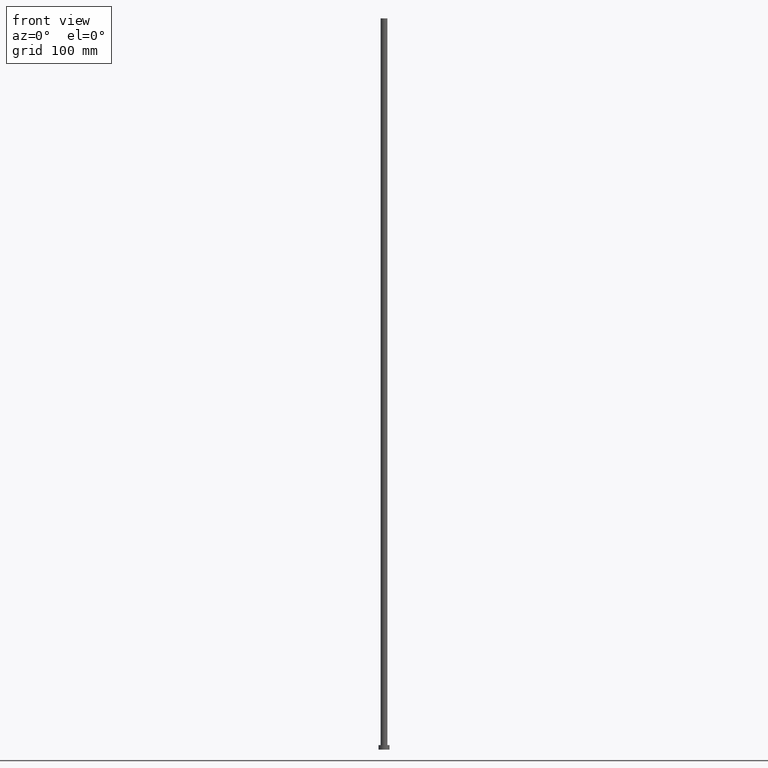
[diagram: clean part render]
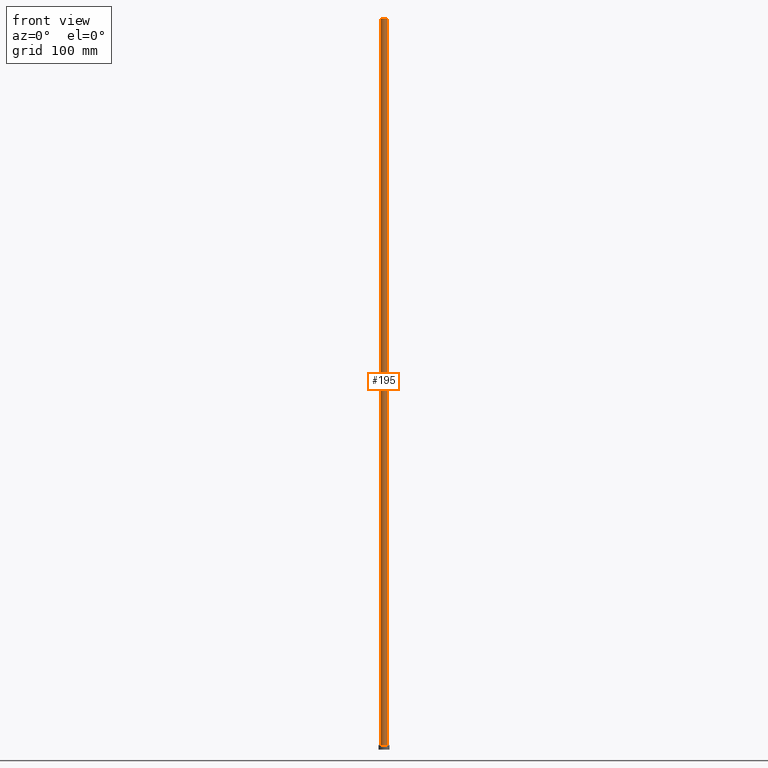
[diagram: same view with one face highlighted and labeled with its STEP entity id]
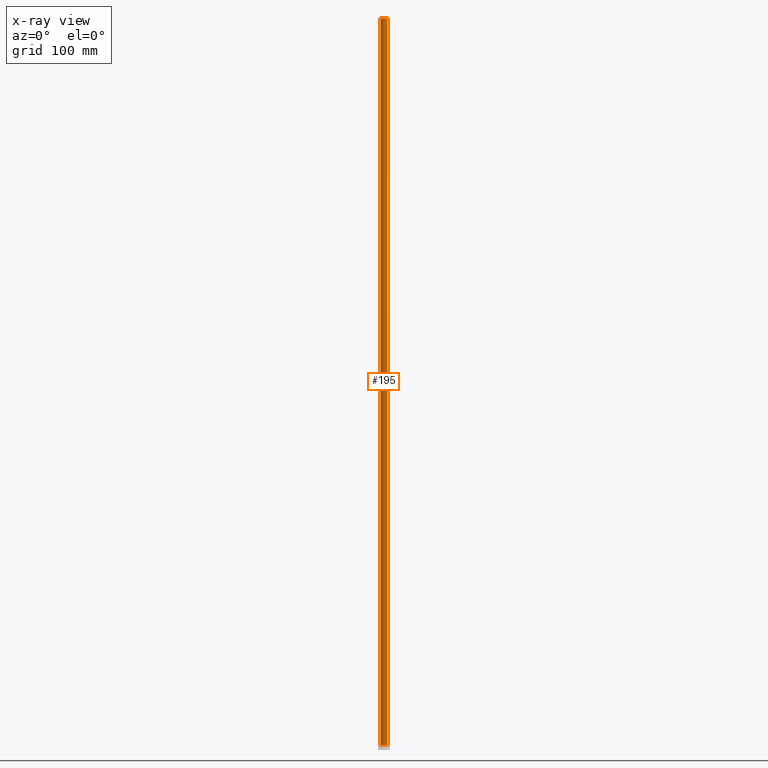
[diagram: x-ray of the same camera — body ghosted, the highlighted face saturated]
A machine part, front view. The second image highlights one B-rep face of the part: STEP entity #195.
The next image is the same camera in x-ray: the body ghosted, the highlighted face saturated — about 0% of this face is hidden behind the body in this view.
In plain terms, the highlighted cylindrical surface (edge-blend (fillet) strip) has radius 3.75 mm, axis along (-0, -0, -1).
Its self-contained STEP definition (entity closure, byte-faithful):
#4 = CARTESIAN_POINT ( 'NONE',  ( -3.750000000000000000, 0.000000000000000000, 800.0000000000000000 ) ) ;
#38 = ORIENTED_EDGE ( 'NONE', *, *, #245, .T. ) ;
#39 = CARTESIAN_POINT ( 'NONE',  ( 3.750000000000000000, 4.592425496802573972E-16, 800.0000000000000000 ) ) ;
#44 = DIRECTION ( 'NONE',  ( -0.000000000000000000, -0.000000000000000000, -1.000000000000000000 ) ) ;
#50 = ORIENTED_EDGE ( 'NONE', *, *, #147, .F. ) ;
#71 = ORIENTED_EDGE ( 'NONE', *, *, #138, .F. ) ;
#72 = CARTESIAN_POINT ( 'NONE',  ( -3.750000000000000000, 0.000000000000000000, 800.0000000000000000 ) ) ;
#73 = AXIS2_PLACEMENT_3D ( 'NONE', #125, #44, #201 ) ;
#75 = EDGE_CURVE ( 'NONE', #165, #95, #177, .T. ) ;
#81 = DIRECTION ( 'NONE',  ( 1.000000000000000000, 0.000000000000000000, 0.000000000000000000 ) ) ;
#86 = AXIS2_PLACEMENT_3D ( 'NONE', #100, #184, #81 ) ;
#95 = VERTEX_POINT ( 'NONE', #156 ) ;
#99 = AXIS2_PLACEMENT_3D ( 'NONE', #241, #120, #205 ) ;
#100 = CARTESIAN_POINT ( 'NONE',  ( 0.000000000000000000, 0.000000000000000000, 5.000000000000000000 ) ) ;
#104 = CARTESIAN_POINT ( 'NONE',  ( 3.750000000000000000, 4.592425496802573972E-16, 800.0000000000000000 ) ) ;
#108 = ORIENTED_EDGE ( 'NONE', *, *, #75, .T. ) ;
#111 = CIRCLE ( 'NONE', #86, 3.750000000000000000 ) ;
#116 = DIRECTION ( 'NONE',  ( -0.000000000000000000, -0.000000000000000000, -1.000000000000000000 ) ) ;
#120 = DIRECTION ( 'NONE',  ( 0.000000000000000000, 0.000000000000000000, 1.000000000000000000 ) ) ;
#125 = CARTESIAN_POINT ( 'NONE',  ( 0.000000000000000000, 0.000000000000000000, 800.0000000000000000 ) ) ;
#138 = EDGE_CURVE ( 'NONE', #208, #252, #219, .T. ) ;
#144 = FACE_OUTER_BOUND ( 'NONE', #168, .T. ) ;
#147 = EDGE_CURVE ( 'NONE', #165, #208, #186, .T. ) ;
#148 = CARTESIAN_POINT ( 'NONE',  ( 3.750000000000000000, 4.592425496802573972E-16, 5.000000000000000000 ) ) ;
#156 = CARTESIAN_POINT ( 'NONE',  ( -3.750000000000000000, 0.000000000000000000, 5.000000000000000000 ) ) ;
#165 = VERTEX_POINT ( 'NONE', #4 ) ;
#168 = EDGE_LOOP ( 'NONE', ( #71, #50, #108, #38 ) ) ;
#177 = LINE ( 'NONE', #72, #199 ) ;
#184 = DIRECTION ( 'NONE',  ( 0.000000000000000000, 0.000000000000000000, 1.000000000000000000 ) ) ;
#186 = CIRCLE ( 'NONE', #99, 3.750000000000000000 ) ;
#195 = ADVANCED_FACE ( 'NONE', ( #144 ), #226, .T. ) ;
#199 = VECTOR ( 'NONE', #239, 1000.000000000000000 ) ;
#201 = DIRECTION ( 'NONE',  ( -1.000000000000000000, 0.000000000000000000, 0.000000000000000000 ) ) ;
#205 = DIRECTION ( 'NONE',  ( 1.000000000000000000, 0.000000000000000000, 0.000000000000000000 ) ) ;
#206 = VECTOR ( 'NONE', #116, 1000.000000000000000 ) ;
#208 = VERTEX_POINT ( 'NONE', #104 ) ;
#219 = LINE ( 'NONE', #39, #206 ) ;
#226 = CYLINDRICAL_SURFACE ( 'NONE', #73, 3.750000000000000000 ) ;
#239 = DIRECTION ( 'NONE',  ( -0.000000000000000000, -0.000000000000000000, -1.000000000000000000 ) ) ;
#241 = CARTESIAN_POINT ( 'NONE',  ( 0.000000000000000000, 0.000000000000000000, 800.0000000000000000 ) ) ;
#245 = EDGE_CURVE ( 'NONE', #95, #252, #111, .T. ) ;
#252 = VERTEX_POINT ( 'NONE', #148 ) ;